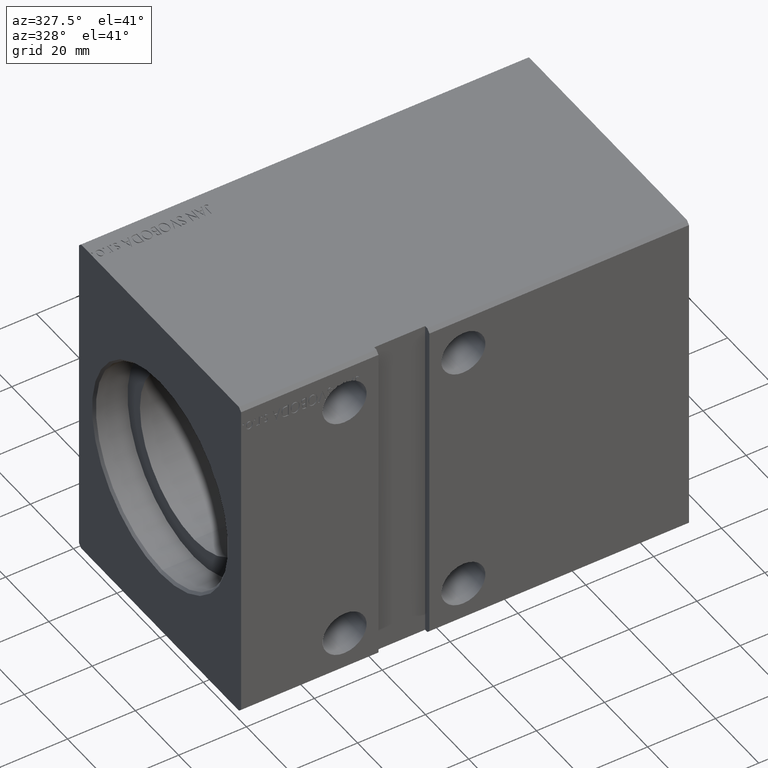
[diagram: clean part render]
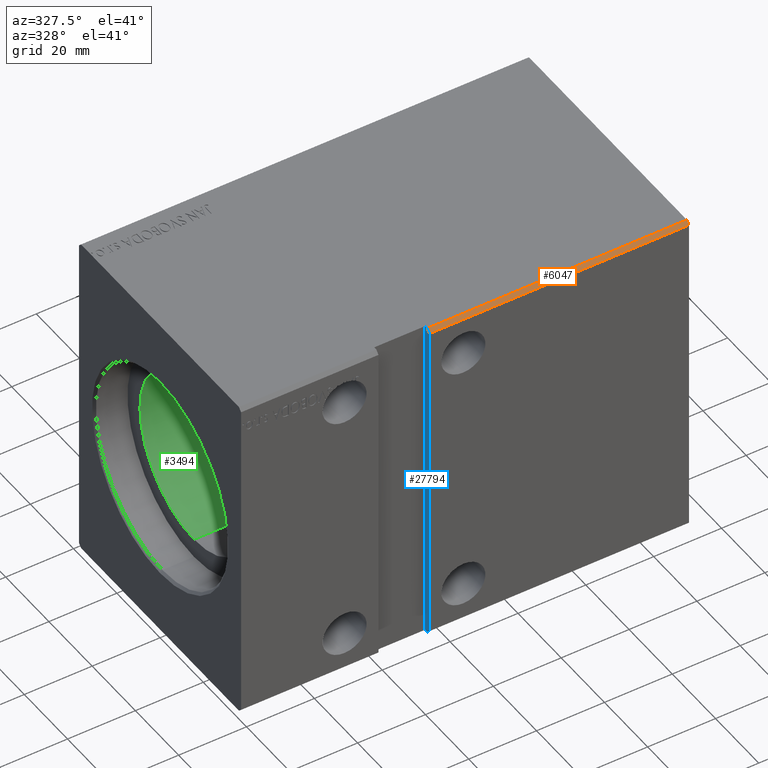
[diagram: same view with three faces highlighted in distinct colors, each labeled with its STEP entity id]
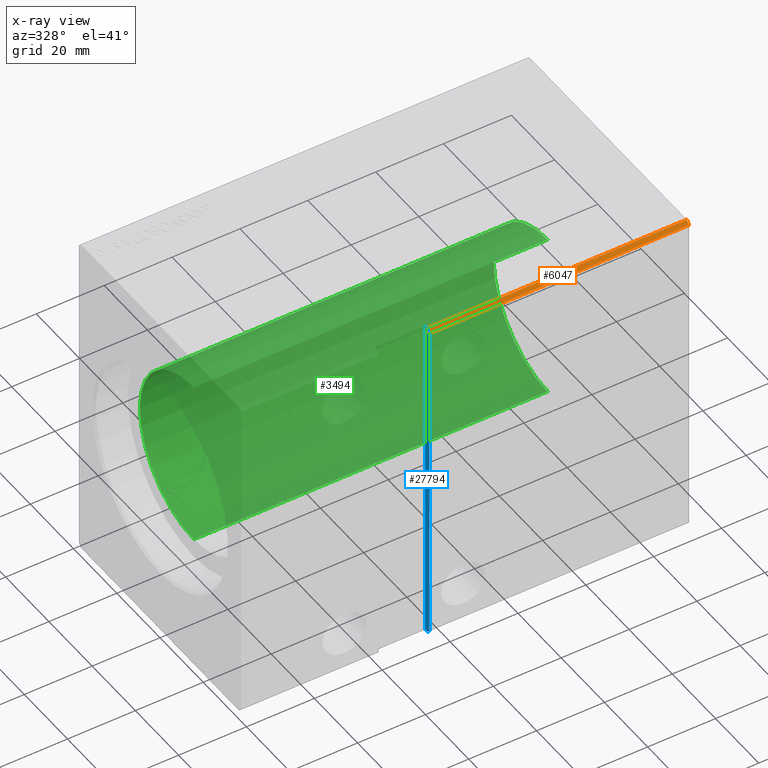
[diagram: x-ray of the same camera — body ghosted, the three highlighted faces saturated]
A machine part, auxiliary view with three faces highlighted in distinct colors.
The next image is the same camera in x-ray (body ghosted, the three faces saturated) — at least one of them is partly hidden behind the body in this view.
Their STEP definitions:

[orange] entity #6047 — the highlighted planar face has unit normal (0, 0.7071, -0.7071).
#443 = VERTEX_POINT ( 'NONE', #10822 ) ;
#962 = VERTEX_POINT ( 'NONE', #27637 ) ;
#1852 = CARTESIAN_POINT ( 'NONE',  ( 55.49999999999999289, -36.50000000000001421, 49.99999999999998579 ) ) ;
#2123 = CARTESIAN_POINT ( 'NONE',  ( 132.0000000000000000, -36.50000000000001421, 49.99999999999998579 ) ) ;
#4860 = CARTESIAN_POINT ( 'NONE',  ( 132.0000000000000000, -36.50000000000001421, 49.99999999999998579 ) ) ;
#5115 = EDGE_CURVE ( 'NONE', #443, #8062, #36682, .T. ) ;
#6047 = ADVANCED_FACE ( 'NONE', ( #11891 ), #39442, .F. ) ;
#6660 = CARTESIAN_POINT ( 'NONE',  ( 132.0000000000000000, -36.50000000000001421, 49.99999999999998579 ) ) ;
#6783 = LINE ( 'NONE', #32067, #40499 ) ;
#7719 = EDGE_CURVE ( 'NONE', #962, #8062, #20423, .T. ) ;
#8062 = VERTEX_POINT ( 'NONE', #11705 ) ;
#8315 = EDGE_CURVE ( 'NONE', #25298, #443, #16184, .T. ) ;
#10822 = CARTESIAN_POINT ( 'NONE',  ( 55.50000000000000000, -36.50000000000001421, 49.99999999999998579 ) ) ;
#11705 = CARTESIAN_POINT ( 'NONE',  ( 55.50000000000000000, -37.50000000000001421, 48.99999999999998579 ) ) ;
#11891 = FACE_OUTER_BOUND ( 'NONE', #29628, .T. ) ;
#12722 = AXIS2_PLACEMENT_3D ( 'NONE', #2123, #20973, #17458 ) ;
#16184 = LINE ( 'NONE', #6660, #35877 ) ;
#17458 = DIRECTION ( 'NONE',  ( 0.000000000000000000, 0.7071067811865474617, 0.7071067811865474617 ) ) ;
#18233 = DIRECTION ( 'NONE',  ( 4.906538933386797858E-17, -0.7071067811865474617, -0.7071067811865474617 ) ) ;
#19957 = ORIENTED_EDGE ( 'NONE', *, *, #7719, .F. ) ;
#20423 = LINE ( 'NONE', #32342, #25969 ) ;
#20973 = DIRECTION ( 'NONE',  ( 0.000000000000000000, 0.7071067811865475727, -0.7071067811865475727 ) ) ;
#22165 = ORIENTED_EDGE ( 'NONE', *, *, #8315, .T. ) ;
#24148 = ORIENTED_EDGE ( 'NONE', *, *, #5115, .T. ) ;
#25298 = VERTEX_POINT ( 'NONE', #4860 ) ;
#25905 = DIRECTION ( 'NONE',  ( -1.000000000000000000, -0.000000000000000000, -0.000000000000000000 ) ) ;
#25969 = VECTOR ( 'NONE', #39512, 1000.000000000000000 ) ;
#27637 = CARTESIAN_POINT ( 'NONE',  ( 132.0000000000000000, -37.50000000000001421, 48.99999999999998579 ) ) ;
#28753 = DIRECTION ( 'NONE',  ( 0.000000000000000000, -0.7071067811865474617, -0.7071067811865474617 ) ) ;
#29628 = EDGE_LOOP ( 'NONE', ( #22165, #24148, #19957, #33048 ) ) ;
#32067 = CARTESIAN_POINT ( 'NONE',  ( 132.0000000000000000, -36.50000000000001421, 49.99999999999998579 ) ) ;
#32342 = CARTESIAN_POINT ( 'NONE',  ( 132.0000000000000000, -37.50000000000001421, 48.99999999999998579 ) ) ;
#33048 = ORIENTED_EDGE ( 'NONE', *, *, #34843, .F. ) ;
#34843 = EDGE_CURVE ( 'NONE', #25298, #962, #6783, .T. ) ;
#35877 = VECTOR ( 'NONE', #25905, 1000.000000000000000 ) ;
#36682 = LINE ( 'NONE', #1852, #39136 ) ;
#39136 = VECTOR ( 'NONE', #18233, 1000.000000000000114 ) ;
#39442 = PLANE ( 'NONE',  #12722 ) ;
#39512 = DIRECTION ( 'NONE',  ( -1.000000000000000000, -0.000000000000000000, -0.000000000000000000 ) ) ;
#40499 = VECTOR ( 'NONE', #28753, 1000.000000000000114 ) ;

[blue] entity #27794 — the highlighted planar face has unit normal (1, -0, 0).
#443 = VERTEX_POINT ( 'NONE', #10822 ) ;
#1704 = ORIENTED_EDGE ( 'NONE', *, *, #34726, .F. ) ;
#1852 = CARTESIAN_POINT ( 'NONE',  ( 55.49999999999999289, -36.50000000000001421, 49.99999999999998579 ) ) ;
#3058 = EDGE_CURVE ( 'NONE', #21910, #443, #33570, .T. ) ;
#4923 = CARTESIAN_POINT ( 'NONE',  ( 55.50000000000000711, -35.50000000000001421, -50.00000000000000000 ) ) ;
#5115 = EDGE_CURVE ( 'NONE', #443, #8062, #36682, .T. ) ;
#5524 = EDGE_CURVE ( 'NONE', #19695, #39382, #24190, .T. ) ;
#5916 = LINE ( 'NONE', #15658, #10682 ) ;
#6006 = CARTESIAN_POINT ( 'NONE',  ( 55.50000000000000000, -35.50000000000001421, 49.99999999999998579 ) ) ;
#8062 = VERTEX_POINT ( 'NONE', #11705 ) ;
#8782 = VECTOR ( 'NONE', #21116, 1000.000000000000000 ) ;
#10411 = EDGE_LOOP ( 'NONE', ( #29752, #1704, #14805, #18109, #26734, #14983 ) ) ;
#10682 = VECTOR ( 'NONE', #28298, 1000.000000000000000 ) ;
#10822 = CARTESIAN_POINT ( 'NONE',  ( 55.50000000000000000, -36.50000000000001421, 49.99999999999998579 ) ) ;
#10960 = EDGE_CURVE ( 'NONE', #23065, #39382, #18547, .T. ) ;
#11705 = CARTESIAN_POINT ( 'NONE',  ( 55.50000000000000000, -37.50000000000001421, 48.99999999999998579 ) ) ;
#11748 = CARTESIAN_POINT ( 'NONE',  ( 55.50000000000000711, -36.50000000000000711, -50.00000000000000000 ) ) ;
#12357 = CARTESIAN_POINT ( 'NONE',  ( 55.49999999999999289, -37.50000000000001421, -49.00000000000000000 ) ) ;
#13772 = AXIS2_PLACEMENT_3D ( 'NONE', #25190, #34743, #22293 ) ;
#14805 = ORIENTED_EDGE ( 'NONE', *, *, #5524, .T. ) ;
#14983 = ORIENTED_EDGE ( 'NONE', *, *, #5115, .F. ) ;
#15658 = CARTESIAN_POINT ( 'NONE',  ( 55.50000000000000000, -37.50000000000001421, 49.99999999999998579 ) ) ;
#15871 = FACE_OUTER_BOUND ( 'NONE', #10411, .T. ) ;
#16614 = VECTOR ( 'NONE', #33949, 1000.000000000000000 ) ;
#18109 = ORIENTED_EDGE ( 'NONE', *, *, #10960, .F. ) ;
#18233 = DIRECTION ( 'NONE',  ( 4.906538933386797858E-17, -0.7071067811865474617, -0.7071067811865474617 ) ) ;
#18547 = LINE ( 'NONE', #12357, #26665 ) ;
#18665 = CARTESIAN_POINT ( 'NONE',  ( 55.50000000000000711, -37.50000000000001421, -48.99999999999997158 ) ) ;
#19303 = VECTOR ( 'NONE', #37253, 1000.000000000000000 ) ;
#19695 = VERTEX_POINT ( 'NONE', #22644 ) ;
#21116 = DIRECTION ( 'NONE',  ( -0.000000000000000000, -1.000000000000000000, -5.507058653894625237E-17 ) ) ;
#21241 = DIRECTION ( 'NONE',  ( 4.906538933386780602E-17, 0.7071067811865500152, -0.7071067811865451302 ) ) ;
#21910 = VERTEX_POINT ( 'NONE', #6006 ) ;
#22112 = CARTESIAN_POINT ( 'NONE',  ( 55.50000000000000000, -35.50000000000001421, 49.99999999999998579 ) ) ;
#22293 = DIRECTION ( 'NONE',  ( 6.938893903907229610E-17, 0.000000000000000000, -1.000000000000000000 ) ) ;
#22644 = CARTESIAN_POINT ( 'NONE',  ( 55.50000000000000711, -35.50000000000001421, -50.00000000000000000 ) ) ;
#23065 = VERTEX_POINT ( 'NONE', #18665 ) ;
#24190 = LINE ( 'NONE', #4923, #16614 ) ;
#25190 = CARTESIAN_POINT ( 'NONE',  ( 55.50000000000000000, -35.50000000000001421, 49.99999999999998579 ) ) ;
#26665 = VECTOR ( 'NONE', #21241, 1000.000000000000114 ) ;
#26734 = ORIENTED_EDGE ( 'NONE', *, *, #37694, .T. ) ;
#27794 = ADVANCED_FACE ( 'NONE', ( #15871 ), #40958, .F. ) ;
#28298 = DIRECTION ( 'NONE',  ( -6.938893903907229610E-17, -0.000000000000000000, 1.000000000000000000 ) ) ;
#29752 = ORIENTED_EDGE ( 'NONE', *, *, #3058, .F. ) ;
#30666 = CARTESIAN_POINT ( 'NONE',  ( 55.50000000000000000, -35.50000000000001421, 49.99999999999998579 ) ) ;
#30828 = LINE ( 'NONE', #22112, #19303 ) ;
#33570 = LINE ( 'NONE', #30666, #8782 ) ;
#33949 = DIRECTION ( 'NONE',  ( -0.000000000000000000, -1.000000000000000000, -5.507058653894625237E-17 ) ) ;
#34726 = EDGE_CURVE ( 'NONE', #19695, #21910, #30828, .T. ) ;
#34743 = DIRECTION ( 'NONE',  ( 1.000000000000000000, -3.821289572196897327E-33, 6.938893903907229610E-17 ) ) ;
#36682 = LINE ( 'NONE', #1852, #39136 ) ;
#37253 = DIRECTION ( 'NONE',  ( -6.938893903907229610E-17, -0.000000000000000000, 1.000000000000000000 ) ) ;
#37694 = EDGE_CURVE ( 'NONE', #23065, #8062, #5916, .T. ) ;
#39136 = VECTOR ( 'NONE', #18233, 1000.000000000000114 ) ;
#39382 = VERTEX_POINT ( 'NONE', #11748 ) ;
#40958 = PLANE ( 'NONE',  #13772 ) ;

[green] entity #3494 — the highlighted cylindrical surface (partial cylindrical patch) has radius 25 mm, axis along (-1, -0, -0).
#374 = DIRECTION ( 'NONE',  ( -1.000000000000000000, 0.000000000000000000, 0.000000000000000000 ) ) ;
#1848 = AXIS2_PLACEMENT_3D ( 'NONE', #10335, #374, #19630 ) ;
#2101 = VERTEX_POINT ( 'NONE', #3944 ) ;
#3494 = ADVANCED_FACE ( 'NONE', ( #26630 ), #33678, .F. ) ;
#3721 = CARTESIAN_POINT ( 'NONE',  ( 9.999999999999994671, 3.061616997868383043E-15, -25.00000000000000000 ) ) ;
#3944 = CARTESIAN_POINT ( 'NONE',  ( 114.2000000000000028, 3.061616997868383043E-15, -25.00000000000000000 ) ) ;
#4690 = AXIS2_PLACEMENT_3D ( 'NONE', #17908, #7783, #17700 ) ;
#7783 = DIRECTION ( 'NONE',  ( -1.000000000000000000, -0.000000000000000000, -0.000000000000000000 ) ) ;
#8064 = AXIS2_PLACEMENT_3D ( 'NONE', #32480, #20216, #16716 ) ;
#8676 = ORIENTED_EDGE ( 'NONE', *, *, #23755, .T. ) ;
#10335 = CARTESIAN_POINT ( 'NONE',  ( 9.999999999999994671, 0.000000000000000000, 0.000000000000000000 ) ) ;
#10376 = DIRECTION ( 'NONE',  ( -1.000000000000000000, -0.000000000000000000, -0.000000000000000000 ) ) ;
#13074 = VERTEX_POINT ( 'NONE', #36106 ) ;
#14334 = LINE ( 'NONE', #20936, #24946 ) ;
#15879 = VERTEX_POINT ( 'NONE', #3721 ) ;
#16716 = DIRECTION ( 'NONE',  ( 0.000000000000000000, 0.000000000000000000, 1.000000000000000000 ) ) ;
#16897 = EDGE_CURVE ( 'NONE', #2101, #15879, #29022, .T. ) ;
#17645 = VERTEX_POINT ( 'NONE', #22881 ) ;
#17700 = DIRECTION ( 'NONE',  ( 0.000000000000000000, 0.000000000000000000, 1.000000000000000000 ) ) ;
#17908 = CARTESIAN_POINT ( 'NONE',  ( 114.2000000000000028, 0.000000000000000000, 0.000000000000000000 ) ) ;
#19630 = DIRECTION ( 'NONE',  ( 0.000000000000000000, 0.000000000000000000, 1.000000000000000000 ) ) ;
#20216 = DIRECTION ( 'NONE',  ( -1.000000000000000000, 0.000000000000000000, 0.000000000000000000 ) ) ;
#20826 = VECTOR ( 'NONE', #10376, 1000.000000000000000 ) ;
#20936 = CARTESIAN_POINT ( 'NONE',  ( 114.2000000000000028, 0.000000000000000000, 25.00000000000000000 ) ) ;
#22881 = CARTESIAN_POINT ( 'NONE',  ( 9.999999999999994671, 0.000000000000000000, 25.00000000000000000 ) ) ;
#23755 = EDGE_CURVE ( 'NONE', #13074, #17645, #14334, .T. ) ;
#24179 = EDGE_CURVE ( 'NONE', #17645, #15879, #37618, .T. ) ;
#24946 = VECTOR ( 'NONE', #33603, 1000.000000000000000 ) ;
#25373 = ORIENTED_EDGE ( 'NONE', *, *, #24179, .T. ) ;
#25888 = ORIENTED_EDGE ( 'NONE', *, *, #39267, .F. ) ;
#26564 = CIRCLE ( 'NONE', #8064, 25.00000000000000000 ) ;
#26630 = FACE_OUTER_BOUND ( 'NONE', #35859, .T. ) ;
#29022 = LINE ( 'NONE', #38745, #20826 ) ;
#30793 = ORIENTED_EDGE ( 'NONE', *, *, #16897, .F. ) ;
#32480 = CARTESIAN_POINT ( 'NONE',  ( 114.2000000000000028, 0.000000000000000000, 0.000000000000000000 ) ) ;
#33603 = DIRECTION ( 'NONE',  ( -1.000000000000000000, -0.000000000000000000, -0.000000000000000000 ) ) ;
#33678 = CYLINDRICAL_SURFACE ( 'NONE', #4690, 25.00000000000000000 ) ;
#35859 = EDGE_LOOP ( 'NONE', ( #30793, #25888, #8676, #25373 ) ) ;
#36106 = CARTESIAN_POINT ( 'NONE',  ( 114.2000000000000028, 0.000000000000000000, 25.00000000000000000 ) ) ;
#37618 = CIRCLE ( 'NONE', #1848, 25.00000000000000000 ) ;
#38745 = CARTESIAN_POINT ( 'NONE',  ( 114.2000000000000028, 3.061616997868383043E-15, -25.00000000000000000 ) ) ;
#39267 = EDGE_CURVE ( 'NONE', #13074, #2101, #26564, .T. ) ;